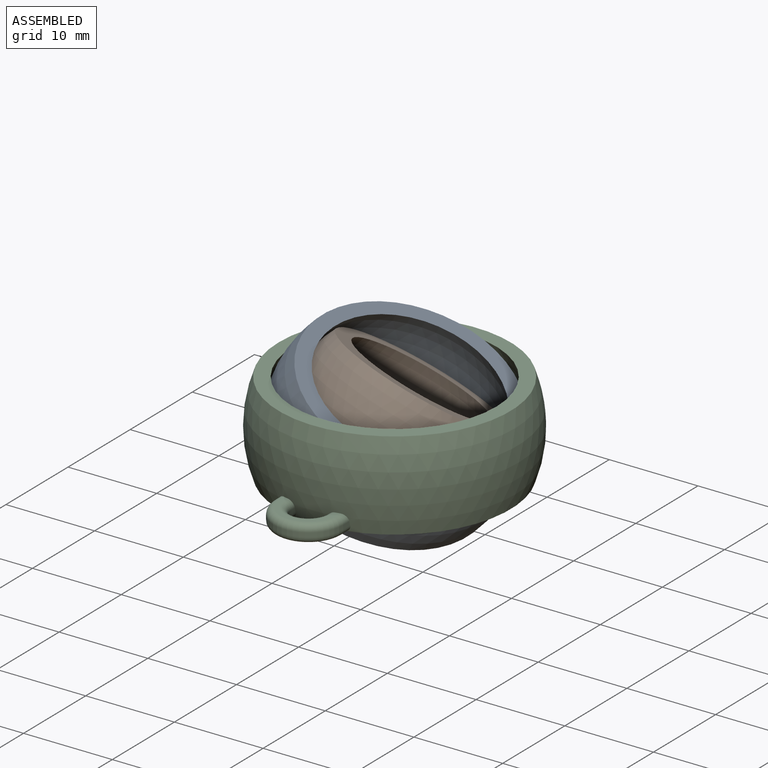
[diagram: assembled view]
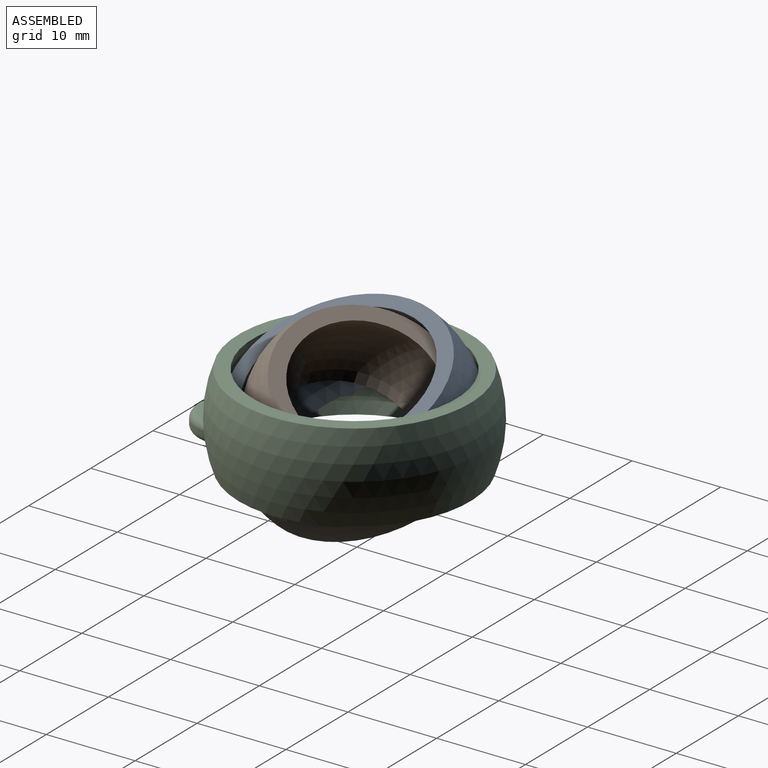
[diagram: assembled view, second angle]
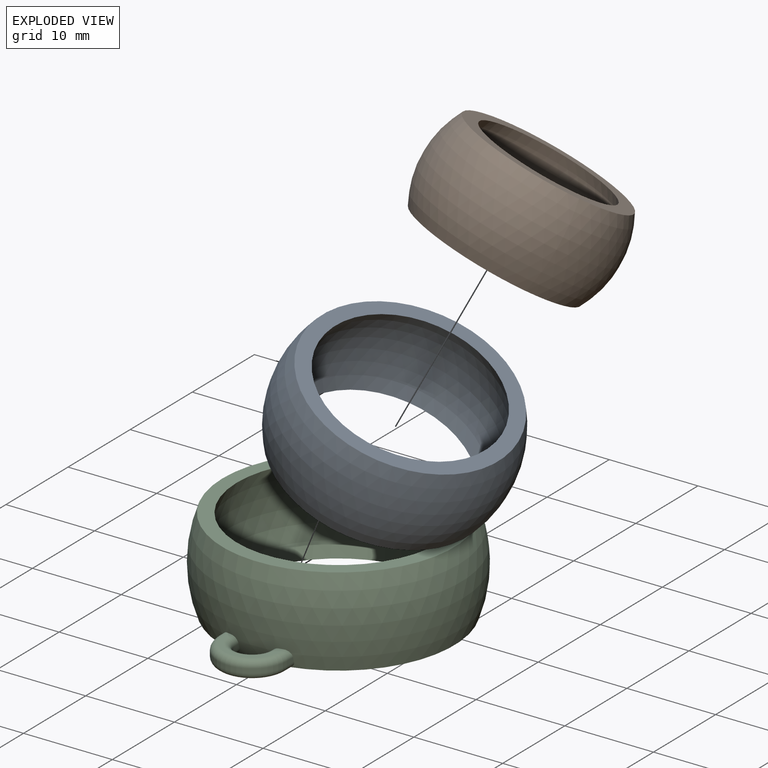
[diagram: exploded view]
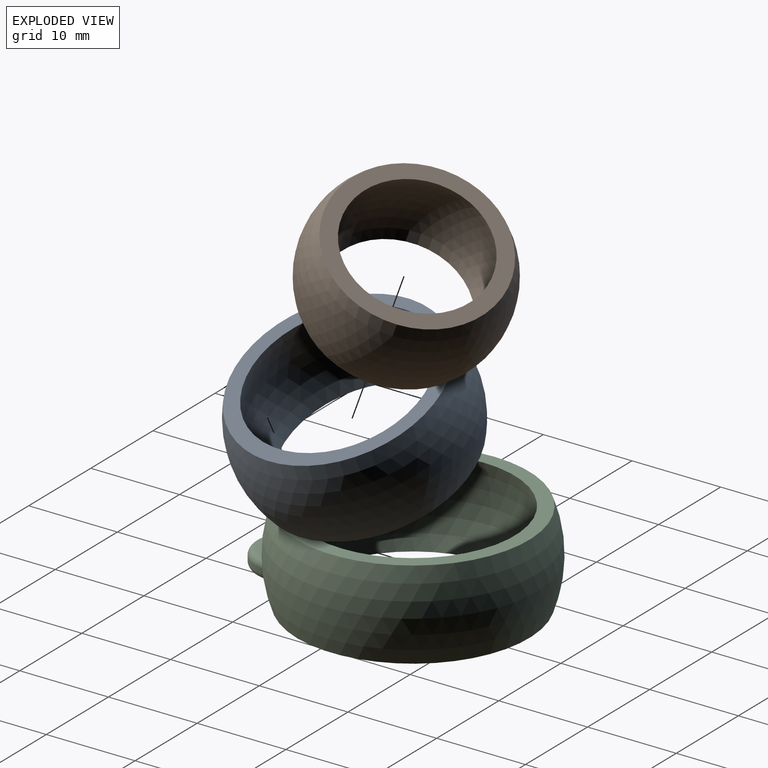
[diagram: exploded view, second angle]
ASSEMBLY  parts=3 mates=2
PART A: 4 faces, bbox 24.5x24.5x10 mm
  f0: sphere r=10.75mm, area 675.4mm2, adj f1,f3
  f1: plane 22.37x22.37mm, normal (0,0,1), area 108.4mm2, adj f0,f2
  f2: sphere r=12.25mm, area 769.7mm2, adj f1,f3
  f3: plane 22.37x22.37mm, normal (0,0,-1), area 108.4mm2, adj f0,f2
PART B: 4 faces, bbox 21x21x10 mm
  f0: plane 18.47x18.47mm, normal (0,0,1), area 91.9mm2, adj f1,f3
  f1: sphere r=10.5mm, area 659.7mm2, adj f0,f2
  f2: plane 18.47x18.47mm, normal (0,0,-1), area 91.9mm2, adj f1,f3
  f3: sphere r=9mm, area 565.5mm2, adj f0,f2
PART C: 23 faces, bbox 28x32.1x10 mm
  f0: sphere r=14mm, area 872.1mm2, adj f2,f3,f4,f5,f6,f7,f10,f11
  f1: sphere r=12.5mm, area 785.4mm2, adj f2,f3
  f2: plane 26.15x26.15mm, normal (0,0,1), area 124.9mm2, adj f0,f1
  f3: plane 30.12x26.15mm, normal (0,0,-1), area 130.6mm2, adj f0,f1,f11,f12,f13,f14,f15,f16
  f4: plane 1.13x0.5mm, normal (-1,0,0), area 0.5mm2, adj f0,f9,f14,f20
  f5: plane 0.68x0.5mm, normal (1,0,0), area 0.3mm2, adj f0,f8,f13,f19
  f6: plane 0.68x0.5mm, normal (-1,0,0), area 0.3mm2, adj f0,f8,f11,f17
  f7: plane 1.13x0.5mm, normal (1,0,0), area 0.5mm2, adj f0,f9,f16,f22
  f8: cylinder r=1.91mm len=3.83mm, axis (0,0,-1), area 3mm2, adj f5,f6,f12,f18
  f9: cylinder r=3.91mm len=7.83mm, axis (0,0,-1), area 6.1mm2, adj f4,f7,f15,f21
  f10: plane 6.33x3.74mm, normal (0,0,1), area 5.1mm2, adj f0,f17,f18,f19,f20,f21,f22
  f11: cylinder r=0.75mm len=1.08mm, axis (0,1,0), area 1.1mm2, adj f0,f3,f6,f12
  f12: torus R=2.66mm, axis (0,0,-1), area 8.1mm2, adj f3,f8,f11,f13
  f13: cylinder r=0.75mm len=1.08mm, axis (0,-1,0), area 1.1mm2, adj f0,f3,f5,f12
  f14: cylinder r=0.75mm len=1.26mm, axis (0,1,0), area 1.4mm2, adj f0,f3,f4,f15
  f15: torus R=3.16mm, axis (0,0,-1), area 13.5mm2, adj f3,f9,f14,f16
  f16: cylinder r=0.75mm len=1.26mm, axis (0,-1,0), area 1.4mm2, adj f0,f3,f7,f15
  f17: cylinder r=0.75mm len=0.75mm, axis (0,-1,0), area 0.5mm2, adj f0,f6,f10,f18
  f18: torus R=2.66mm, axis (0,0,-1), area 8.1mm2, adj f8,f10,f17,f19
  f19: cylinder r=0.75mm len=0.75mm, axis (0,1,0), area 0.5mm2, adj f0,f5,f10,f18
  f20: cylinder r=0.75mm len=0.98mm, axis (0,-1,0), area 0.9mm2, adj f0,f4,f10,f21
  f21: torus R=3.16mm, axis (0,0,-1), area 13.5mm2, adj f9,f10,f20,f22
  f22: cylinder r=0.75mm len=0.98mm, axis (0,1,0), area 0.9mm2, adj f0,f7,f10,f21
PLACE A rot(axis=(0.23,0.08,0.97),120.6deg) t=(-3.24,3.31,-2)mm
PLACE B rot(axis=(0.07,0.29,0.96),143.7deg) t=(-2.66,0.65,-1.67)mm
PLACE C t=(-1.2,2.9,-2.45)mm fixed
MATE ball A.f0 <-> C.f0  axis (0.41,-0.08,0.91) through (-1.2,2.9,2.55)mm
MATE ball B.f1 <-> A.f0  axis (0.29,0.45,0.84) through (-1.2,2.9,2.55)mm
